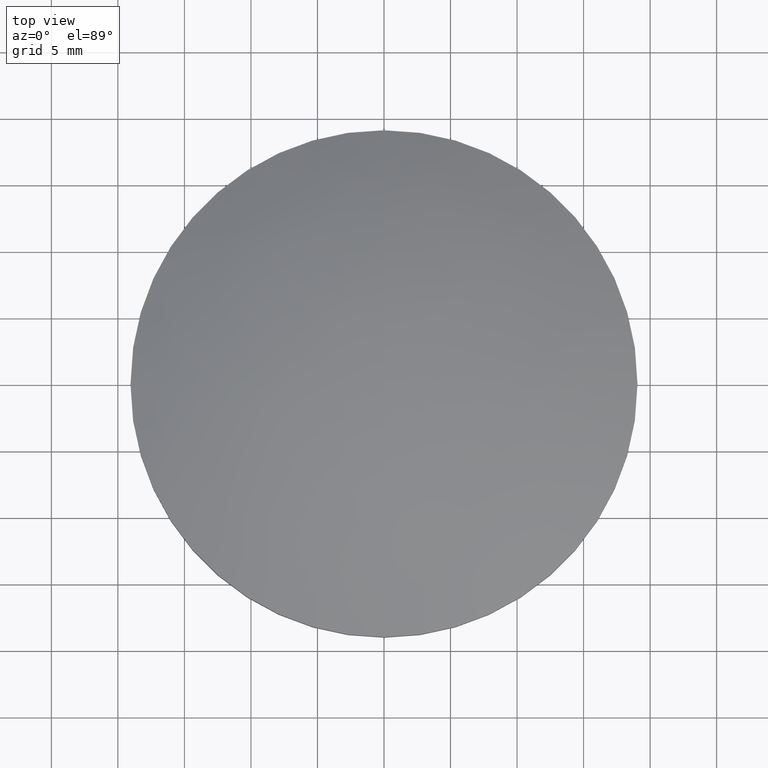
[diagram: clean part render]
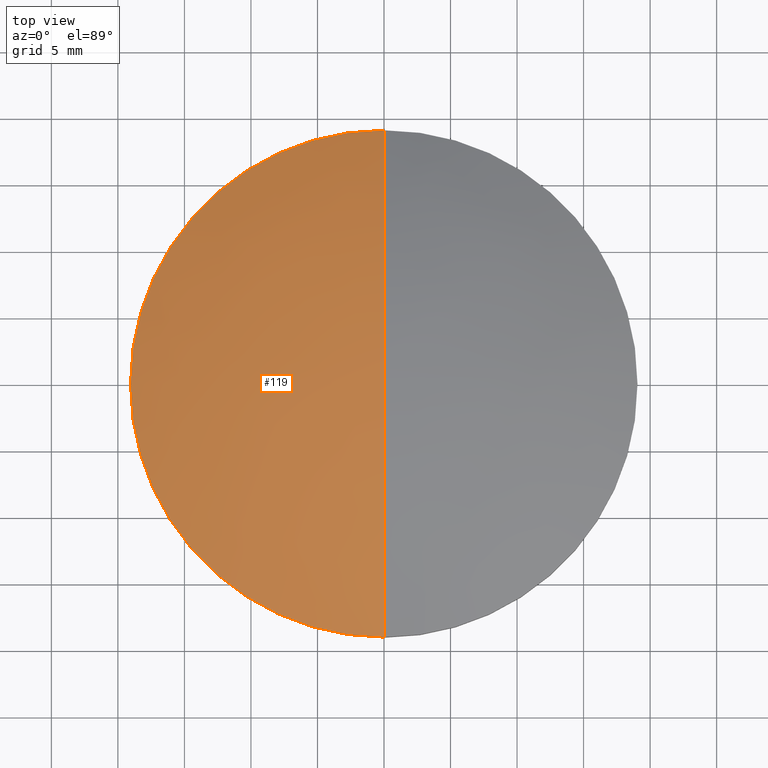
[diagram: same view with one face highlighted and labeled with its STEP entity id]
A machine part, top view. The second image highlights one B-rep face of the part: STEP entity #119.
In plain terms, the highlighted face is a freeform B-spline surface patch.
Its self-contained STEP definition (entity closure, byte-faithful):
#3 = ORIENTED_EDGE ( 'NONE', *, *, #78, .F. ) ;
#13 = AXIS2_PLACEMENT_3D ( 'NONE', #33, #55, #127 ) ;
#14 = DIRECTION ( 'NONE',  ( -1.000000000000000000, 0.0000000000000000000, 3.208982423888019900E-016 ) ) ;
#31 = CARTESIAN_POINT ( 'NONE',  ( -13.56008348748277600, -6.845478120576441200, 11.04108377331125400 ) ) ;
#33 = CARTESIAN_POINT ( 'NONE',  ( -4.662936703425659800E-015, -8.881784197001250400E-016, 6.846190645143179800 ) ) ;
#40 = AXIS2_PLACEMENT_3D ( 'NONE', #241, #14, #130 ) ;
#49 = DIRECTION ( 'NONE',  ( 1.000000000000000000, 0.0000000000000000000, 0.0000000000000000000 ) ) ;
#55 = DIRECTION ( 'NONE',  ( -0.0000000000000000000, -0.0000000000000000000, -1.000000000000000000 ) ) ;
#56 = CARTESIAN_POINT ( 'NONE',  ( -17.37683644862777800, 19.26412198409374800, 2.935049531995540800 ) ) ;
#67 = ORIENTED_EDGE ( 'NONE', *, *, #114, .F. ) ;
#70 = CIRCLE ( 'NONE', #258, 19.05000000000000100 ) ;
#77 = CARTESIAN_POINT ( 'NONE',  ( -17.37683644862777800, -19.26412198409376600, 2.935049531995540800 ) ) ;
#78 = EDGE_CURVE ( 'NONE', #219, #173, #70, .T. ) ;
#97 = CARTESIAN_POINT ( 'NONE',  ( 1.872193478806382100E-014, -6.845478120576441200, 12.51112556411019700 ) ) ;
#114 = EDGE_CURVE ( 'NONE', #173, #292, #287, .T. ) ;
#115 = CARTESIAN_POINT ( 'NONE',  ( 1.687239224827240600E-014, -19.26412198409376600, 6.747483712963811400 ) ) ;
#116 = EDGE_LOOP ( 'NONE', ( #3, #139, #67 ) ) ;
#119 = ADVANCED_FACE ( 'NONE', ( #188 ), #248, .T. ) ;
#127 = DIRECTION ( 'NONE',  ( 1.000000000000000000, 0.0000000000000000000, 0.0000000000000000000 ) ) ;
#129 = CARTESIAN_POINT ( 'NONE',  ( -6.023337074847369800, -19.26412198409376600, 6.747483712963814100 ) ) ;
#130 = DIRECTION ( 'NONE',  ( 0.0000000000000000000, -1.000000000000000000, 0.0000000000000000000 ) ) ;
#131 = CARTESIAN_POINT ( 'NONE',  ( 1.690406712932035900E-014, -19.05000000000001100, 6.846190645143182400 ) ) ;
#139 = ORIENTED_EDGE ( 'NONE', *, *, #229, .T. ) ;
#150 = DIRECTION ( 'NONE',  ( -0.0000000000000000000, -0.0000000000000000000, -1.000000000000000000 ) ) ;
#153 = CIRCLE ( 'NONE', #40, 45.76000000000000500 ) ;
#157 = CARTESIAN_POINT ( 'NONE',  ( -11.90673879215711800, 19.26412198409374800, 5.456680184154038200 ) ) ;
#173 = VERTEX_POINT ( 'NONE', #184 ) ;
#183 = CARTESIAN_POINT ( 'NONE',  ( -6.859724987162785200, -6.845478120576441200, 12.51112556411020000 ) ) ;
#184 = CARTESIAN_POINT ( 'NONE',  ( -19.05000000000000400, 1.444773732675583000E-015, 6.846190645143179800 ) ) ;
#188 = FACE_OUTER_BOUND ( 'NONE', #116, .T. ) ;
#198 = CARTESIAN_POINT ( 'NONE',  ( -19.78974739472198200, 6.845478120576424400, 8.169304794638444300 ) ) ;
#199 = CARTESIAN_POINT ( 'NONE',  ( -19.78974739472198200, -6.845478120576441200, 8.169304794638447800 ) ) ;
#204 = CARTESIAN_POINT ( 'NONE',  ( 1.872193478806382100E-014, 6.845478120576424400, 12.51112556411019500 ) ) ;
#219 = VERTEX_POINT ( 'NONE', #131 ) ;
#229 = EDGE_CURVE ( 'NONE', #219, #292, #153, .T. ) ;
#240 = CARTESIAN_POINT ( 'NONE',  ( -6.859724987162784300, 6.845478120576423500, 12.51112556411019500 ) ) ;
#241 = CARTESIAN_POINT ( 'NONE',  ( 3.552713678800500100E-015, -7.105427357601000300E-015, -34.75999999999999800 ) ) ;
#248 =( BOUNDED_SURFACE ( )  B_SPLINE_SURFACE ( 3, 3, ( 
 ( #115, #129, #284, #77 ),
 ( #97, #183, #31, #199 ),
 ( #204, #240, #262, #198 ),
 ( #256, #285, #157, #56 ) ),
 .UNSPECIFIED., .F., .F., .F. ) 
 B_SPLINE_SURFACE_WITH_KNOTS ( ( 4, 4 ),
 ( 4, 4 ),
 ( 0.0000000000000000000, 1.000000000000000000 ),
 ( 0.0000000000000000000, 1.000000000000000000 ),
 .UNSPECIFIED. ) 
 GEOMETRIC_REPRESENTATION_ITEM ( )  RATIONAL_B_SPLINE_SURFACE ( (
 ( 1.000000000000000000, 0.9845118682220205300, 0.9845118682220205300, 1.000000000000000000),
 ( 0.9380460913893327000, 0.9235175099120761500, 0.9235175099120761500, 0.9380460913893327000),
 ( 0.9380460913893327000, 0.9235175099120761500, 0.9235175099120761500, 0.9380460913893327000),
 ( 1.000000000000000000, 0.9845118682220205300, 0.9845118682220205300, 1.000000000000000000) ) ) 
 REPRESENTATION_ITEM ( '' )  SURFACE ( )  );
#256 = CARTESIAN_POINT ( 'NONE',  ( 1.687239224827240600E-014, 19.26412198409374800, 6.747483712963811400 ) ) ;
#258 = AXIS2_PLACEMENT_3D ( 'NONE', #277, #150, #49 ) ;
#262 = CARTESIAN_POINT ( 'NONE',  ( -13.56008348748277800, 6.845478120576423500, 11.04108377331124800 ) ) ;
#277 = CARTESIAN_POINT ( 'NONE',  ( -4.662936703425659800E-015, -8.881784197001250400E-016, 6.846190645143179800 ) ) ;
#284 = CARTESIAN_POINT ( 'NONE',  ( -11.90673879215711800, -19.26412198409376600, 5.456680184154038200 ) ) ;
#285 = CARTESIAN_POINT ( 'NONE',  ( -6.023337074847369800, 19.26412198409374800, 6.747483712963814100 ) ) ;
#286 = CARTESIAN_POINT ( 'NONE',  ( 1.690406712932035900E-014, 19.05000000000000400, 6.846190645143182400 ) ) ;
#287 = CIRCLE ( 'NONE', #13, 19.05000000000000100 ) ;
#292 = VERTEX_POINT ( 'NONE', #286 ) ;